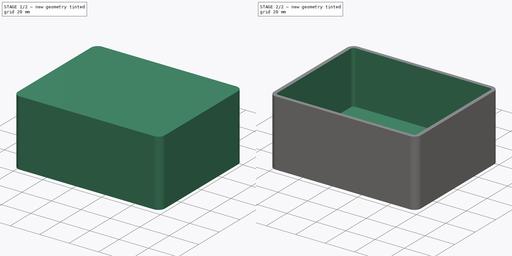
[diagram: build sequence overview — one tinted view per stage of 2, left to right]
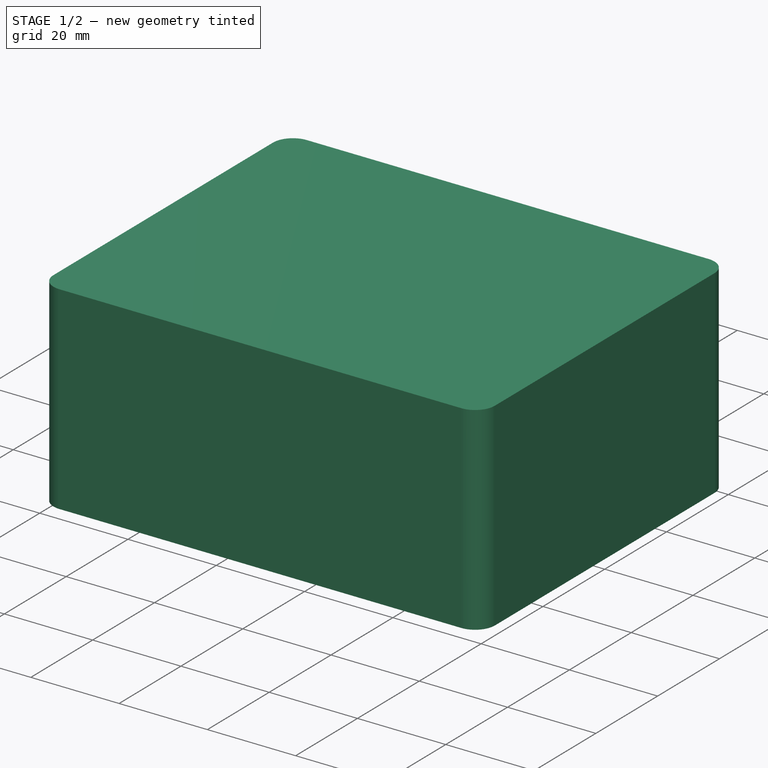
[diagram: stage 1 of 2 — iso view after this stage's code; geometry added in this stage tinted green]
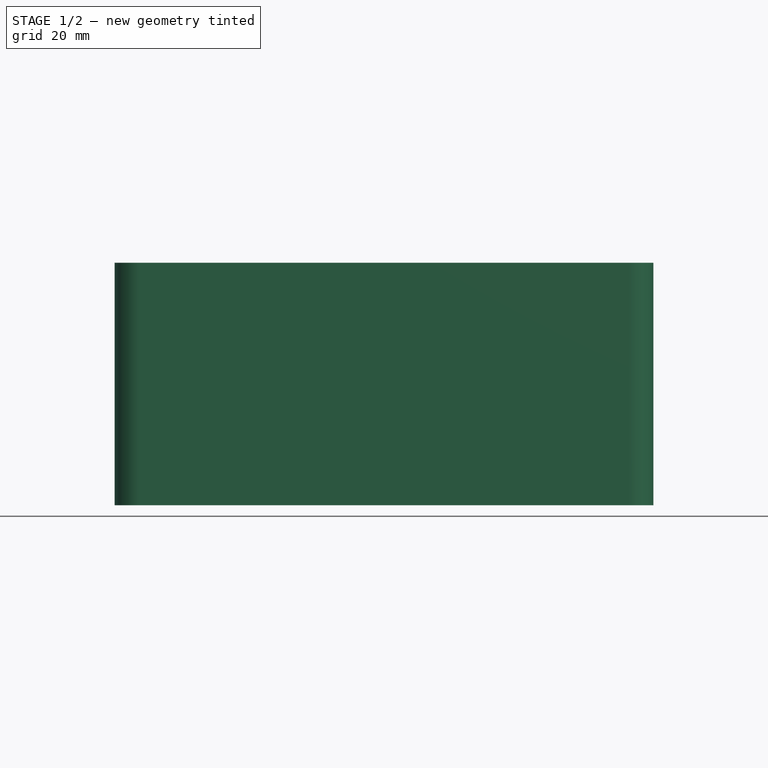
[diagram: stage 1 of 2 — front view after this stage's code; geometry added in this stage tinted green]
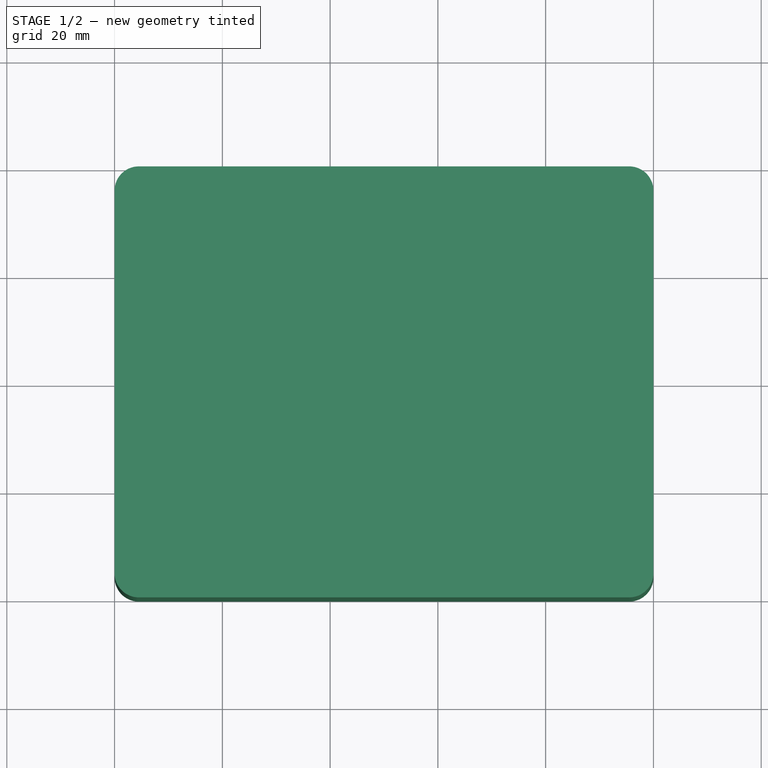
[diagram: stage 1 of 2 — top view after this stage's code; geometry added in this stage tinted green]
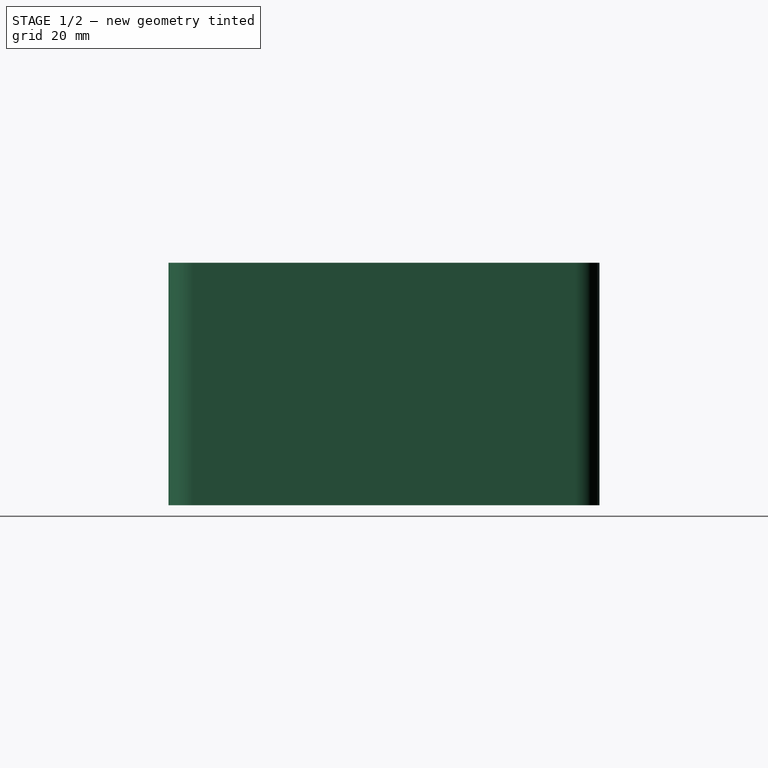
[diagram: stage 1 of 2 — right view after this stage's code; geometry added in this stage tinted green]
FCSTD DOCUMENT  (FreeCAD 1.0R39109 (Git))
Label: top boxx
License: All rights reserved
LicenseURL: http://en.wikipedia.org/wiki/All_rights_reserved
objects: Sketcher::SketchObject×2, PartDesign::Pad×1, PartDesign::Pocket×1, PartDesign::Body×1
note: 11 computed .brp shape members not serialized (recipe doc carries the construction recipe); baked Part::Feature solids carry a one-line shape summary decoded from their .brp

FEATURE [Sketcher::SketchObject] Sketch
  ArcFitTolerance = 1e-06
  AttachmentSupport = -> [XY_Plane]
  FullyConstrained = true
  MakeInternals = false
  MapMode = 5
  sketch-geometry (12):
    g0: LineSegment StartX=4.5 StartY=0 StartZ=0 EndX=95.5 EndY=0 EndZ=0
    g1: LineSegment StartX=100 StartY=4.5 StartZ=0 EndX=100 EndY=75.5 EndZ=0
    g2: LineSegment StartX=95.5 StartY=80 StartZ=0 EndX=4.5 EndY=80 EndZ=0
    g3: LineSegment StartX=0 StartY=75.5 StartZ=0 EndX=0 EndY=4.5 EndZ=0
    g4: ArcOfCircle CenterX=4.5 CenterY=75.5 CenterZ=0 NormalX=0 NormalY=0 NormalZ=1 AngleXU=0 Radius=4.5 StartAngle=1.5708 EndAngle=3.14159
    g5: GeomPoint [constr] X=0 Y=80 Z=0
    g6: ArcOfCircle CenterX=95.5 CenterY=75.5 CenterZ=0 NormalX=0 NormalY=0 NormalZ=1 AngleXU=0 Radius=4.5 StartAngle=0 EndAngle=1.5708
    g7: GeomPoint [constr] X=100 Y=80 Z=0
    g8: ArcOfCircle CenterX=4.5 CenterY=4.5 CenterZ=0 NormalX=0 NormalY=0 NormalZ=1 AngleXU=0 Radius=4.5 StartAngle=3.14159 EndAngle=4.71239
    g9: GeomPoint [constr] X=0 Y=0 Z=0
    g10: ArcOfCircle CenterX=95.5 CenterY=4.5 CenterZ=0 NormalX=0 NormalY=0 NormalZ=1 AngleXU=0 Radius=4.5 StartAngle=4.71239 EndAngle=6.28319
    g11: GeomPoint [constr] X=100 Y=0 Z=0
  constraints (27):
    c: Horizontal(g0)
    c: Horizontal(g2)
    c: Vertical(g1)
    c: Vertical(g3)
    c: Distance(g11,g9) = 100
    c: Distance(g9,g5) = 80
    c: Coincident(g9,g-1)
    c: PointOnObject(g5,g3)
    c: PointOnObject(g5,g2)
    c: Tangent(g3,g4) = -1.5708
    c: Tangent(g2,g4) = -1.5708
    c: PointOnObject(g7,g2)
    c: PointOnObject(g7,g1)
    c: Tangent(g2,g6) = -1.5708
    c: Tangent(g1,g6) = -1.5708
    c: PointOnObject(g9,g3)
    c: PointOnObject(g9,g0)
    c: Tangent(g3,g8) = -1.5708
    c: Tangent(g0,g8) = -1.5708
    c: PointOnObject(g11,g0)
    c: PointOnObject(g11,g1)
    c: Tangent(g0,g10) = -1.5708
    c: Tangent(g1,g10) = -1.5708
    c: DistanceX(g6,g7) = 4.5
    c: DistanceX(g10,g11) = 4.5
    c: DistanceX(g9,g8) = 4.5
    c: DistanceX(g5,g4) = 4.5
FEATURE [PartDesign::Pad] Pad
  Direction = (0,0,1)
  Length = 45
  Length2 = 10
  Profile = -> Sketch
  ReferenceAxis = -> Sketch [N_Axis]
  Suppressed = false
  Type = 0
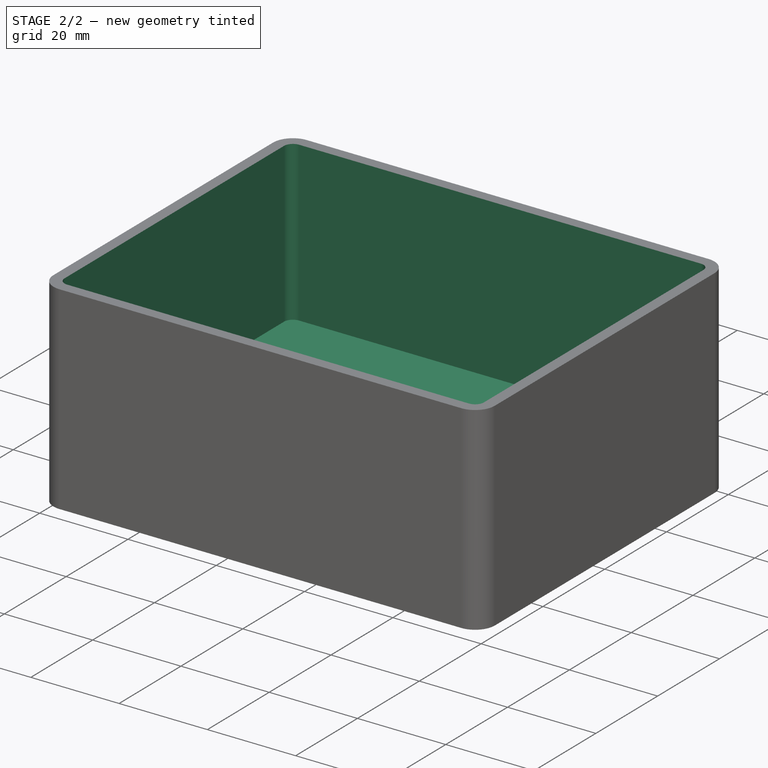
[diagram: stage 2 of 2 — iso view after this stage's code; geometry added in this stage tinted green]
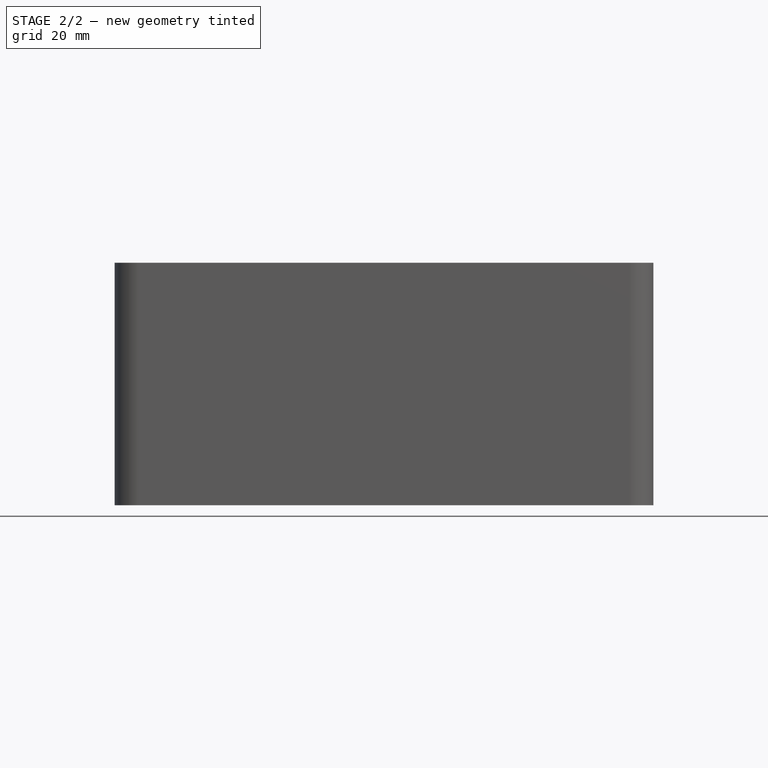
[diagram: stage 2 of 2 — front view after this stage's code; geometry added in this stage tinted green]
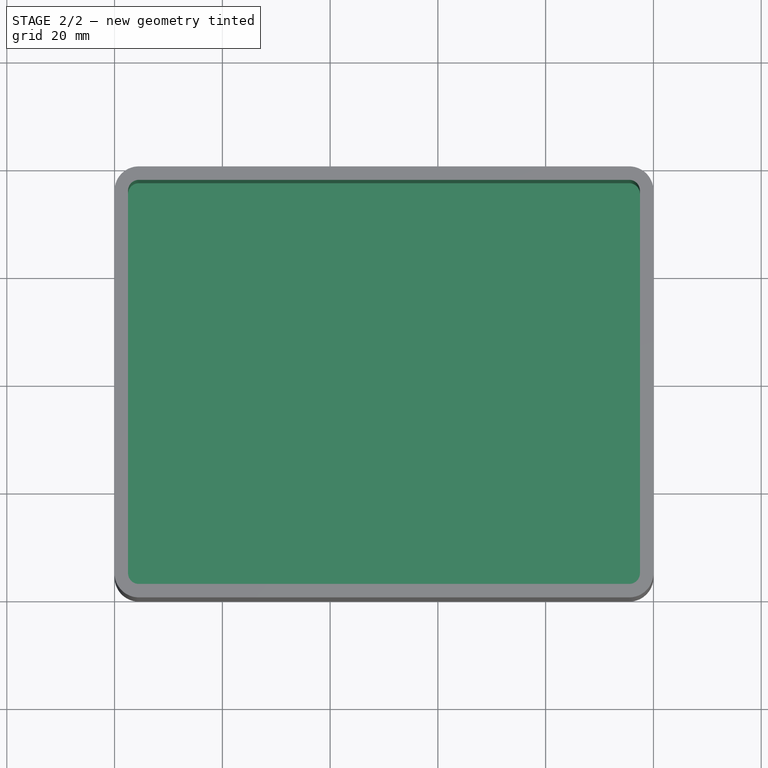
[diagram: stage 2 of 2 — top view after this stage's code; geometry added in this stage tinted green]
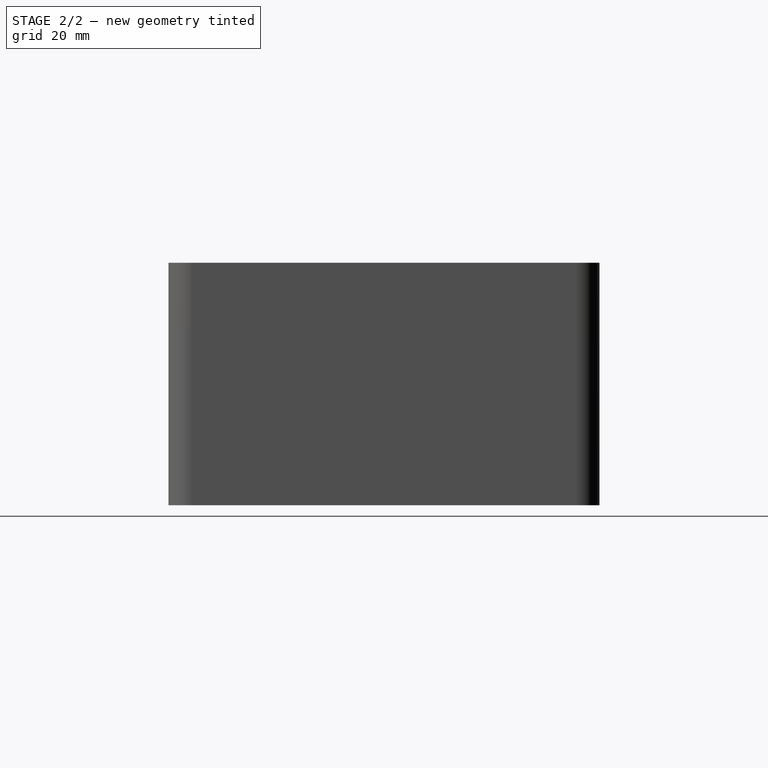
[diagram: stage 2 of 2 — right view after this stage's code; geometry added in this stage tinted green]
FEATURE [Sketcher::SketchObject] Sketch001
  ArcFitTolerance = 1e-06
  AttachmentSupport = -> [Pad]
  FullyConstrained = true
  MakeInternals = false
  MapMode = 5
  Placement = pos=(0,0,45) rot=(0,0,1;0rad)
  sketch-geometry (12):
    g0: LineSegment StartX=2.5 StartY=75.5 StartZ=0 EndX=2.5 EndY=4.5 EndZ=0
    g1: LineSegment StartX=4.5 StartY=2.5 StartZ=0 EndX=95.5 EndY=2.5 EndZ=0
    g2: LineSegment StartX=97.5 StartY=4.5 StartZ=0 EndX=97.5 EndY=75.5 EndZ=0
    g3: LineSegment StartX=95.5 StartY=77.5 StartZ=0 EndX=4.5 EndY=77.5 EndZ=0
    g4: ArcOfCircle CenterX=4.5 CenterY=4.5 CenterZ=0 NormalX=0 NormalY=0 NormalZ=1 AngleXU=0 Radius=2 StartAngle=3.14159 EndAngle=4.71239
    g5: GeomPoint [constr] X=2.5 Y=2.5 Z=0
    g6: ArcOfCircle CenterX=95.5 CenterY=4.5 CenterZ=0 NormalX=0 NormalY=0 NormalZ=1 AngleXU=0 Radius=2 StartAngle=4.71239 EndAngle=6.28319
    g7: GeomPoint [constr] X=97.5 Y=2.5 Z=0
    g8: ArcOfCircle CenterX=95.5 CenterY=75.5 CenterZ=0 NormalX=0 NormalY=0 NormalZ=1 AngleXU=0 Radius=2 StartAngle=-2.7e-15 EndAngle=1.5708
    g9: GeomPoint [constr] X=97.5 Y=77.5 Z=0
    g10: ArcOfCircle CenterX=4.5 CenterY=75.5 CenterZ=0 NormalX=0 NormalY=0 NormalZ=1 AngleXU=0 Radius=2 StartAngle=1.5708 EndAngle=3.14159
    g11: GeomPoint [constr] X=2.5 Y=77.5 Z=0
  constraints (28):
    c: Vertical(g0)
    c: Vertical(g2)
    c: Horizontal(g1)
    c: Horizontal(g3)
    c: Distance(g11,g9) = 95
    c: Distance(g5,g11) = 75
    c: DistanceX(g-1,g5) = 2.5
    c: DistanceY(g-1,g5) = 2.5
    c: PointOnObject(g5,g0)
    c: PointOnObject(g5,g1)
    c: Tangent(g0,g4) = -1.5708
    c: Tangent(g1,g4) = -1.5708
    c: PointOnObject(g7,g1)
    c: PointOnObject(g7,g2)
    c: Tangent(g1,g6) = -1.5708
    c: Tangent(g2,g6) = -1.5708
    c: PointOnObject(g9,g3)
    c: PointOnObject(g9,g2)
    c: Tangent(g3,g8) = -1.5708
    c: Tangent(g2,g8) = -1.5708
    c: PointOnObject(g11,g3)
    c: PointOnObject(g11,g0)
    c: Tangent(g3,g10) = -1.5708
    c: Tangent(g0,g10) = -1.5708
    c: DistanceX(g11,g10) = 2
    c: DistanceX(g8,g9) = 2
    c: DistanceX(g6,g7) = 2
    c: DistanceX(g5,g4) = 2
FEATURE [PartDesign::Pocket] Pocket
  BaseFeature = -> Pad
  Direction = (0,0,-1)
  Length = 36
  Length2 = 5
  Profile = -> Sketch001
  ReferenceAxis = -> Sketch001 [N_Axis]
  Suppressed = false
  Type = 0
FEATURE [PartDesign::Body] Body
  AllowCompound = false
  Group = -> [Sketch,Pad,Sketch001,Pocket]
  Origin = -> Origin
  Tip = -> Pocket
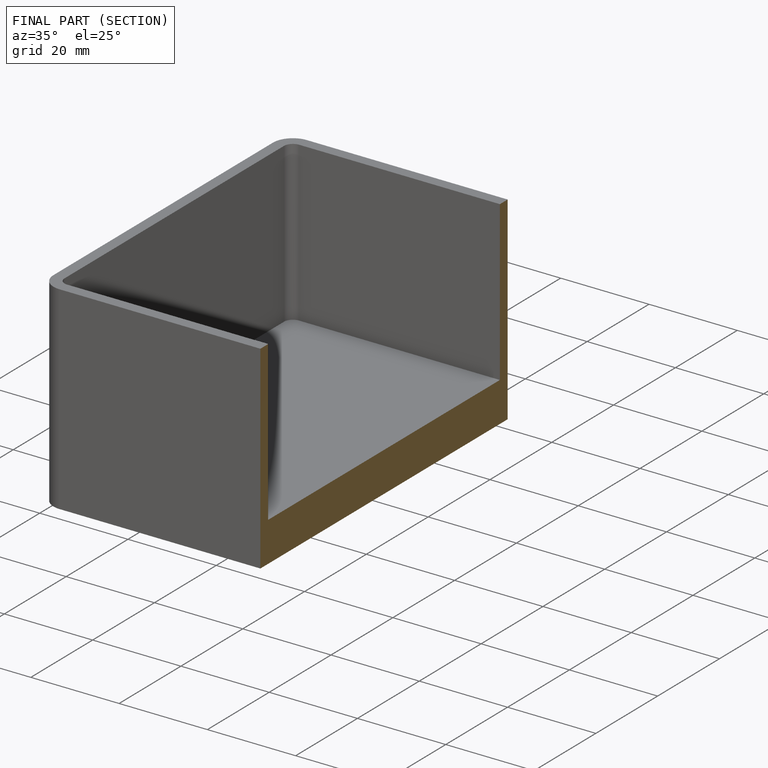
[diagram: finished part — half-section view (interior)]
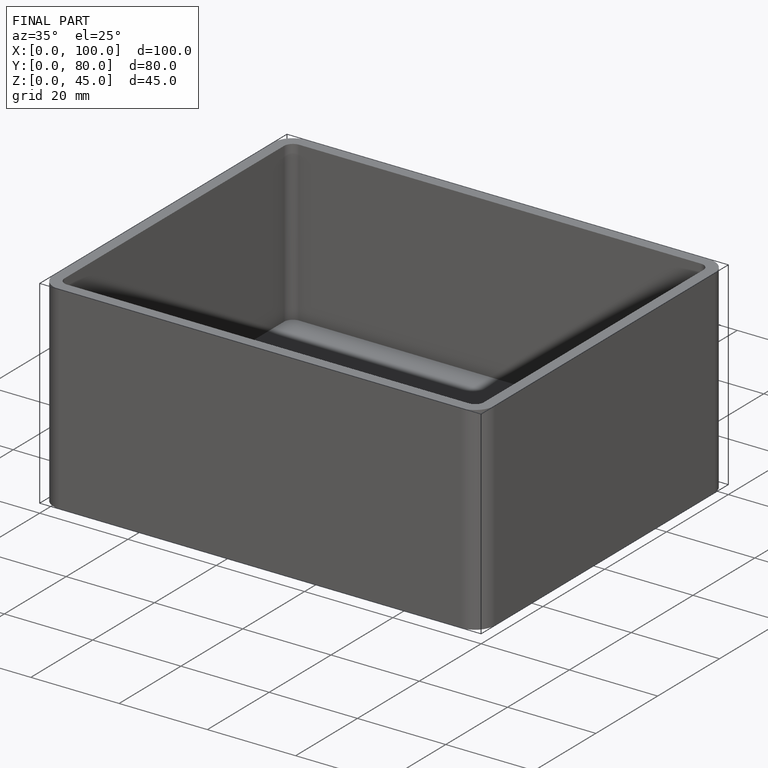
[diagram: finished part — iso view with bounding-box wireframe]
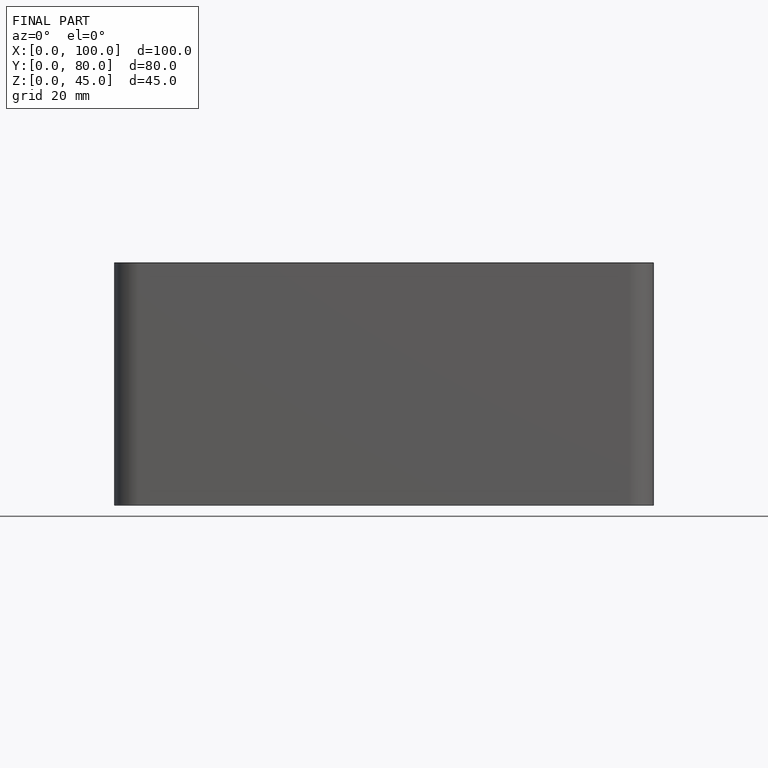
[diagram: finished part — front view with bounding-box wireframe]
